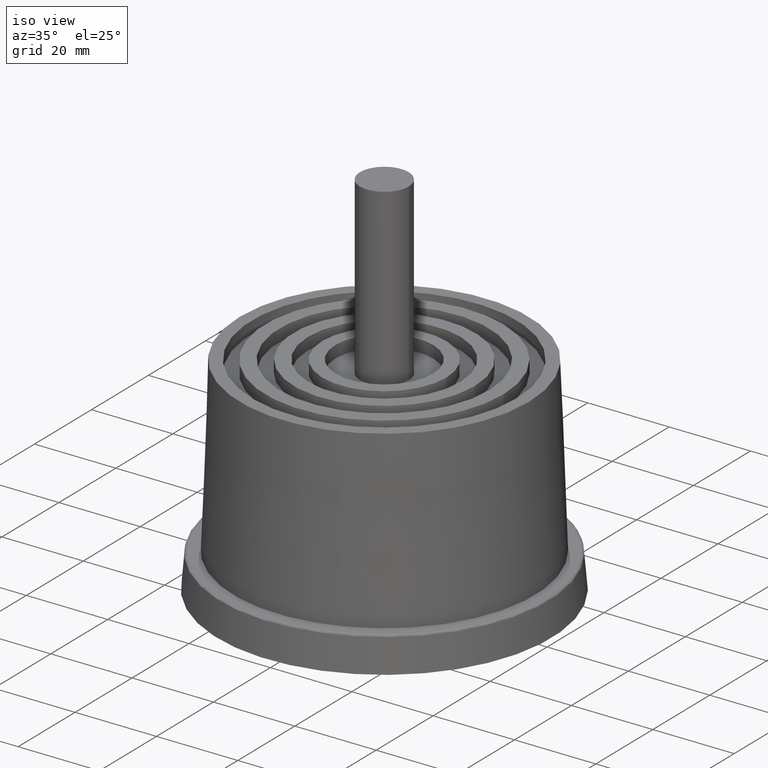
[diagram: clean part render]
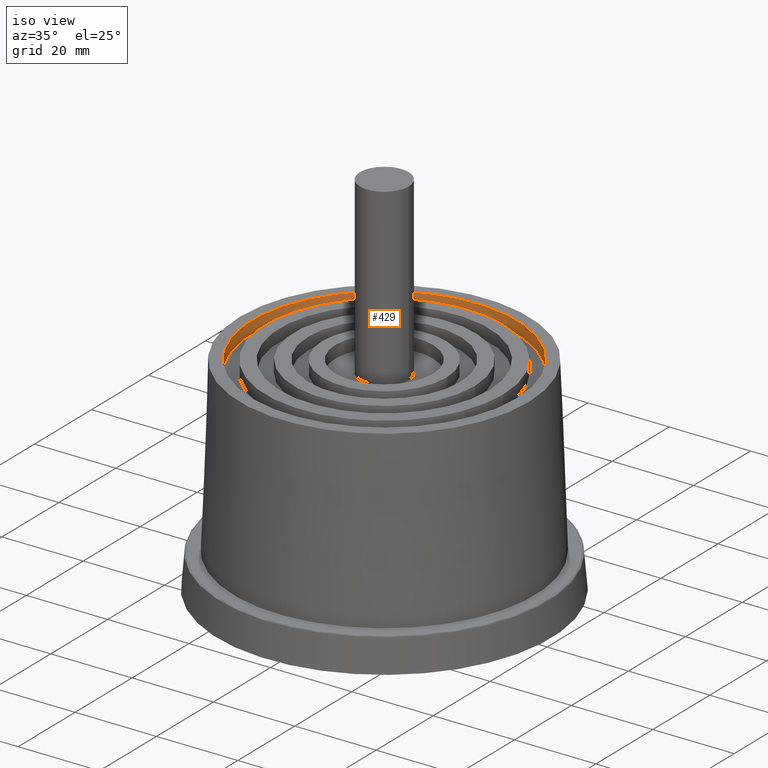
[diagram: same view with one face highlighted and labeled with its STEP entity id]
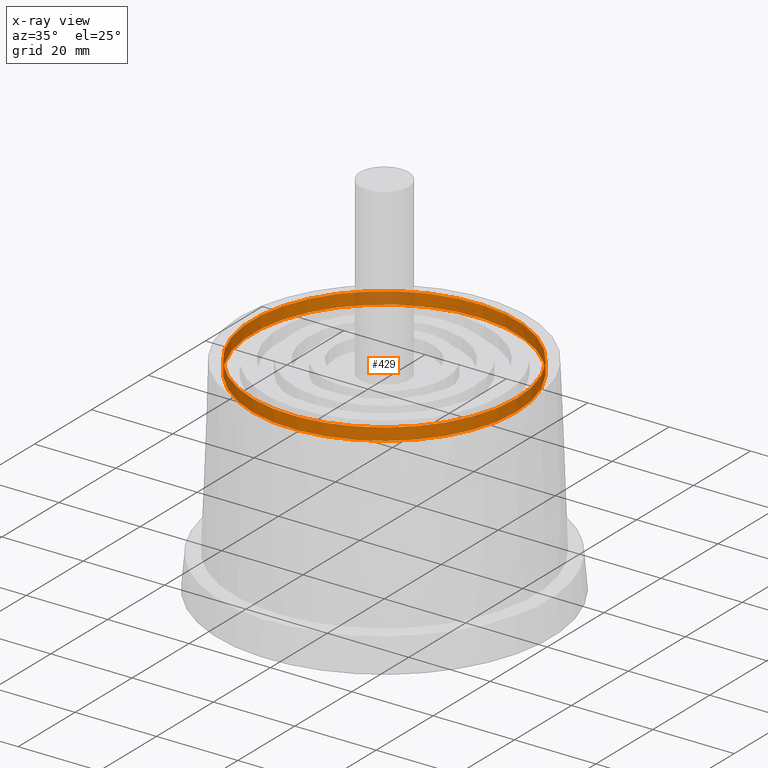
[diagram: x-ray of the same camera — body ghosted, the highlighted face saturated]
A machine part, iso view. The second image highlights one B-rep face of the part: STEP entity #429.
The next image is the same camera in x-ray: the body ghosted, the highlighted face saturated — about 9% of this face is hidden behind the body in this view.
In plain terms, the highlighted cylindrical surface (bore or boss wall) has radius 32.5 mm, axis along (0, 0, -1).
Its self-contained STEP definition (entity closure, byte-faithful):
#41=FACE_BOUND('',#127,.T.);
#82=FACE_OUTER_BOUND('',#126,.T.);
#126=EDGE_LOOP('',(#331));
#127=EDGE_LOOP('',(#332));
#207=CIRCLE('',#478,32.5);
#208=CIRCLE('',#479,32.5);
#248=VERTEX_POINT('',#734);
#249=VERTEX_POINT('',#736);
#289=EDGE_CURVE('',#248,#248,#207,.T.);
#290=EDGE_CURVE('',#249,#249,#208,.T.);
#331=ORIENTED_EDGE('',*,*,#289,.T.);
#332=ORIENTED_EDGE('',*,*,#290,.F.);
#410=CYLINDRICAL_SURFACE('',#477,32.5);
#429=ADVANCED_FACE('',(#82,#41),#410,.F.);
#477=AXIS2_PLACEMENT_3D('',#733,#569,#570);
#478=AXIS2_PLACEMENT_3D('',#735,#571,#572);
#479=AXIS2_PLACEMENT_3D('',#737,#573,#574);
#569=DIRECTION('center_axis',(0.,0.,-1.));
#570=DIRECTION('ref_axis',(-1.,0.,0.));
#571=DIRECTION('center_axis',(0.,0.,-1.));
#572=DIRECTION('ref_axis',(-1.,0.,0.));
#573=DIRECTION('center_axis',(0.,0.,-1.));
#574=DIRECTION('ref_axis',(-1.,0.,0.));
#733=CARTESIAN_POINT('Origin',(0.,0.,51.));
#734=CARTESIAN_POINT('',(32.5,3.9801020972289E-15,48.));
#735=CARTESIAN_POINT('Origin',(0.,0.,48.));
#736=CARTESIAN_POINT('',(32.5,3.9801020972289E-15,51.));
#737=CARTESIAN_POINT('Origin',(0.,0.,51.));